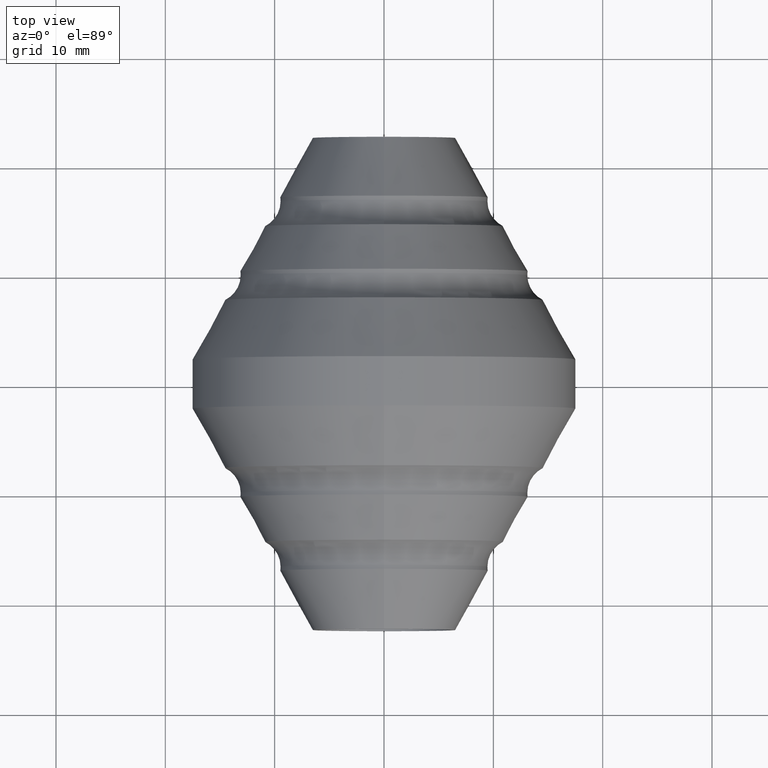
[diagram: clean part render]
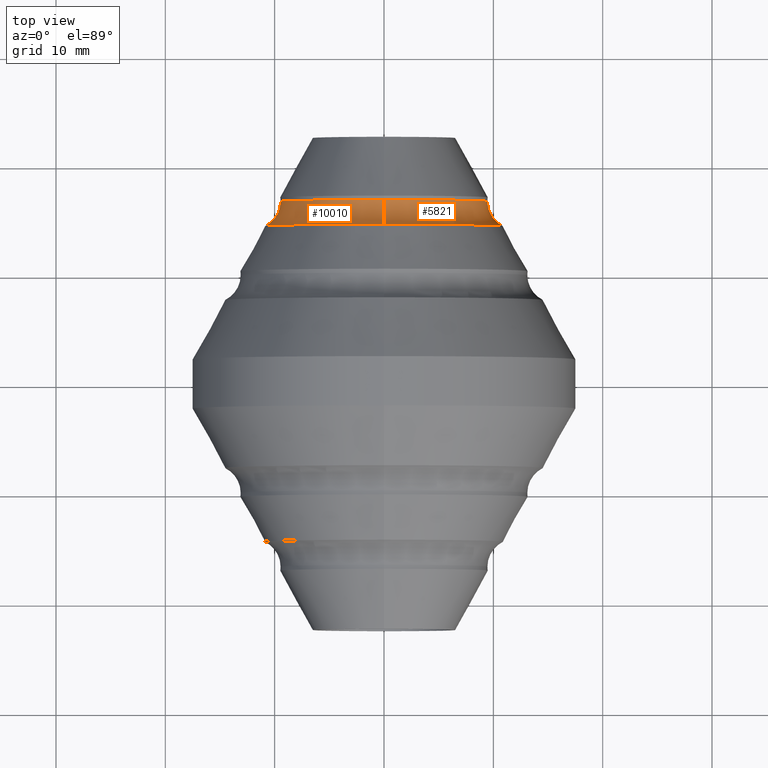
[diagram: same view with one multi-face feature highlighted, each face labeled with its STEP entity id]
A machine part, top view. The highlighted faces form ONE feature: a constant-radius fillet chain: 2 tangent blend faces with common blend radius 2.5 mm. The faces share edges in the B-rep.
Their STEP definitions:
[1] entity #10010 (Torus):
#72 = VERTEX_POINT ( 'NONE', #6499 ) ;
#363 = DIRECTION ( 'NONE',  ( -0.000000000000000000, -1.000000000000000000, -0.000000000000000000 ) ) ;
#693 = VERTEX_POINT ( 'NONE', #7054 ) ;
#1530 = CARTESIAN_POINT ( 'NONE',  ( 1.464587642672743608E-15, 16.70130662323746407, 11.95926567311037303 ) ) ;
#1697 = EDGE_CURVE ( 'NONE', #693, #72, #11573, .T. ) ;
#2182 = CARTESIAN_POINT ( 'NONE',  ( 0.000000000000000000, 16.70130662323746407, 0.000000000000000000 ) ) ;
#2471 = DIRECTION ( 'NONE',  ( -0.000000000000000000, -1.000000000000000000, -0.000000000000000000 ) ) ;
#2678 = DIRECTION ( 'NONE',  ( 1.000000000000000000, 0.000000000000000000, -1.224646799147353207E-16 ) ) ;
#3530 = CARTESIAN_POINT ( 'NONE',  ( 0.000000000000000000, 14.43055074516721348, -10.91347996742809734 ) ) ;
#3894 = ORIENTED_EDGE ( 'NONE', *, *, #1697, .T. ) ;
#4092 = DIRECTION ( 'NONE',  ( -1.000000000000000000, 0.000000000000000000, 0.000000000000000000 ) ) ;
#4665 = TOROIDAL_SURFACE ( 'NONE', #5338, 11.95926567311037303, 2.499999999999992895 ) ;
#4818 = CARTESIAN_POINT ( 'NONE',  ( 0.000000000000000000, 16.70130662323746407, -9.459265673110380135 ) ) ;
#4996 = AXIS2_PLACEMENT_3D ( 'NONE', #1530, #2678, #11618 ) ;
#5076 = EDGE_CURVE ( 'NONE', #693, #8017, #5443, .T. ) ;
#5261 = DIRECTION ( 'NONE',  ( 0.000000000000000000, 0.000000000000000000, 1.000000000000000000 ) ) ;
#5338 = AXIS2_PLACEMENT_3D ( 'NONE', #2182, #363, #8110 ) ;
#5443 = CIRCLE ( 'NONE', #11254, 10.91347996742809734 ) ;
#6237 = FACE_OUTER_BOUND ( 'NONE', #14133, .T. ) ;
#6397 = ORIENTED_EDGE ( 'NONE', *, *, #9318, .F. ) ;
#6499 = CARTESIAN_POINT ( 'NONE',  ( 1.158425942885906132E-15, 16.70130662323746407, 9.459265673110380135 ) ) ;
#7054 = CARTESIAN_POINT ( 'NONE',  ( 1.472637775974691892E-15, 14.43055074516721348, 10.91347996742809734 ) ) ;
#8017 = VERTEX_POINT ( 'NONE', #3530 ) ;
#8110 = DIRECTION ( 'NONE',  ( 0.000000000000000000, 0.000000000000000000, -1.000000000000000000 ) ) ;
#8922 = CARTESIAN_POINT ( 'NONE',  ( 0.000000000000000000, 16.70130662323746407, 0.000000000000000000 ) ) ;
#8959 = ORIENTED_EDGE ( 'NONE', *, *, #5076, .F. ) ;
#9143 = CIRCLE ( 'NONE', #9621, 9.459265673110381911 ) ;
#9318 = EDGE_CURVE ( 'NONE', #8017, #13275, #10946, .T. ) ;
#9403 = DIRECTION ( 'NONE',  ( 0.000000000000000000, 0.000000000000000000, -1.000000000000000000 ) ) ;
#9621 = AXIS2_PLACEMENT_3D ( 'NONE', #8922, #2471, #10229 ) ;
#10010 = ADVANCED_FACE ( 'NONE', ( #6237 ), #4665, .F. ) ;
#10229 = DIRECTION ( 'NONE',  ( 0.000000000000000000, 0.000000000000000000, -1.000000000000000000 ) ) ;
#10276 = ORIENTED_EDGE ( 'NONE', *, *, #12640, .T. ) ;
#10347 = AXIS2_PLACEMENT_3D ( 'NONE', #12914, #4092, #5261 ) ;
#10946 = CIRCLE ( 'NONE', #10347, 2.499999999999992006 ) ;
#11254 = AXIS2_PLACEMENT_3D ( 'NONE', #11593, #12778, #9403 ) ;
#11573 = CIRCLE ( 'NONE', #4996, 2.499999999999992006 ) ;
#11593 = CARTESIAN_POINT ( 'NONE',  ( 0.000000000000000000, 14.43055074516721348, 0.000000000000000000 ) ) ;
#11618 = DIRECTION ( 'NONE',  ( -1.224646799147353700E-16, 0.000000000000000000, -1.000000000000000000 ) ) ;
#12640 = EDGE_CURVE ( 'NONE', #72, #13275, #9143, .T. ) ;
#12778 = DIRECTION ( 'NONE',  ( -0.000000000000000000, -1.000000000000000000, -0.000000000000000000 ) ) ;
#12914 = CARTESIAN_POINT ( 'NONE',  ( 0.000000000000000000, 16.70130662323746407, -11.95926567311037303 ) ) ;
#13275 = VERTEX_POINT ( 'NONE', #4818 ) ;
#14133 = EDGE_LOOP ( 'NONE', ( #3894, #10276, #6397, #8959 ) ) ;
[2] entity #5821 (Torus):
#72 = VERTEX_POINT ( 'NONE', #6499 ) ;
#602 = AXIS2_PLACEMENT_3D ( 'NONE', #9667, #6326, #13001 ) ;
#693 = VERTEX_POINT ( 'NONE', #7054 ) ;
#958 = CARTESIAN_POINT ( 'NONE',  ( 0.000000000000000000, 14.43055074516721348, 0.000000000000000000 ) ) ;
#1530 = CARTESIAN_POINT ( 'NONE',  ( 1.464587642672743608E-15, 16.70130662323746407, 11.95926567311037303 ) ) ;
#1608 = DIRECTION ( 'NONE',  ( -0.000000000000000000, -1.000000000000000000, -0.000000000000000000 ) ) ;
#1697 = EDGE_CURVE ( 'NONE', #693, #72, #11573, .T. ) ;
#2047 = ORIENTED_EDGE ( 'NONE', *, *, #10598, .F. ) ;
#2678 = DIRECTION ( 'NONE',  ( 1.000000000000000000, 0.000000000000000000, -1.224646799147353207E-16 ) ) ;
#3530 = CARTESIAN_POINT ( 'NONE',  ( 0.000000000000000000, 14.43055074516721348, -10.91347996742809734 ) ) ;
#4092 = DIRECTION ( 'NONE',  ( -1.000000000000000000, 0.000000000000000000, 0.000000000000000000 ) ) ;
#4818 = CARTESIAN_POINT ( 'NONE',  ( 0.000000000000000000, 16.70130662323746407, -9.459265673110380135 ) ) ;
#4996 = AXIS2_PLACEMENT_3D ( 'NONE', #1530, #2678, #11618 ) ;
#5260 = TOROIDAL_SURFACE ( 'NONE', #9584, 11.95926567311037303, 2.499999999999992895 ) ;
#5261 = DIRECTION ( 'NONE',  ( 0.000000000000000000, 0.000000000000000000, 1.000000000000000000 ) ) ;
#5412 = DIRECTION ( 'NONE',  ( -0.000000000000000000, -1.000000000000000000, -0.000000000000000000 ) ) ;
#5514 = EDGE_LOOP ( 'NONE', ( #12310, #12639, #13084, #2047 ) ) ;
#5821 = ADVANCED_FACE ( 'NONE', ( #8557 ), #5260, .F. ) ;
#6326 = DIRECTION ( 'NONE',  ( -0.000000000000000000, -1.000000000000000000, -0.000000000000000000 ) ) ;
#6499 = CARTESIAN_POINT ( 'NONE',  ( 1.158425942885906132E-15, 16.70130662323746407, 9.459265673110380135 ) ) ;
#7054 = CARTESIAN_POINT ( 'NONE',  ( 1.472637775974691892E-15, 14.43055074516721348, 10.91347996742809734 ) ) ;
#8017 = VERTEX_POINT ( 'NONE', #3530 ) ;
#8108 = DIRECTION ( 'NONE',  ( 0.000000000000000000, 0.000000000000000000, -1.000000000000000000 ) ) ;
#8557 = FACE_OUTER_BOUND ( 'NONE', #5514, .T. ) ;
#8708 = DIRECTION ( 'NONE',  ( 0.000000000000000000, 0.000000000000000000, -1.000000000000000000 ) ) ;
#9318 = EDGE_CURVE ( 'NONE', #8017, #13275, #10946, .T. ) ;
#9584 = AXIS2_PLACEMENT_3D ( 'NONE', #10281, #1608, #8108 ) ;
#9667 = CARTESIAN_POINT ( 'NONE',  ( 0.000000000000000000, 16.70130662323746407, 0.000000000000000000 ) ) ;
#10281 = CARTESIAN_POINT ( 'NONE',  ( 0.000000000000000000, 16.70130662323746407, 0.000000000000000000 ) ) ;
#10347 = AXIS2_PLACEMENT_3D ( 'NONE', #12914, #4092, #5261 ) ;
#10598 = EDGE_CURVE ( 'NONE', #8017, #693, #11261, .T. ) ;
#10946 = CIRCLE ( 'NONE', #10347, 2.499999999999992006 ) ;
#11003 = EDGE_CURVE ( 'NONE', #13275, #72, #13680, .T. ) ;
#11261 = CIRCLE ( 'NONE', #11569, 10.91347996742809734 ) ;
#11569 = AXIS2_PLACEMENT_3D ( 'NONE', #958, #5412, #8708 ) ;
#11573 = CIRCLE ( 'NONE', #4996, 2.499999999999992006 ) ;
#11618 = DIRECTION ( 'NONE',  ( -1.224646799147353700E-16, 0.000000000000000000, -1.000000000000000000 ) ) ;
#12310 = ORIENTED_EDGE ( 'NONE', *, *, #9318, .T. ) ;
#12639 = ORIENTED_EDGE ( 'NONE', *, *, #11003, .T. ) ;
#12914 = CARTESIAN_POINT ( 'NONE',  ( 0.000000000000000000, 16.70130662323746407, -11.95926567311037303 ) ) ;
#13001 = DIRECTION ( 'NONE',  ( 0.000000000000000000, 0.000000000000000000, -1.000000000000000000 ) ) ;
#13084 = ORIENTED_EDGE ( 'NONE', *, *, #1697, .F. ) ;
#13275 = VERTEX_POINT ( 'NONE', #4818 ) ;
#13680 = CIRCLE ( 'NONE', #602, 9.459265673110381911 ) ;